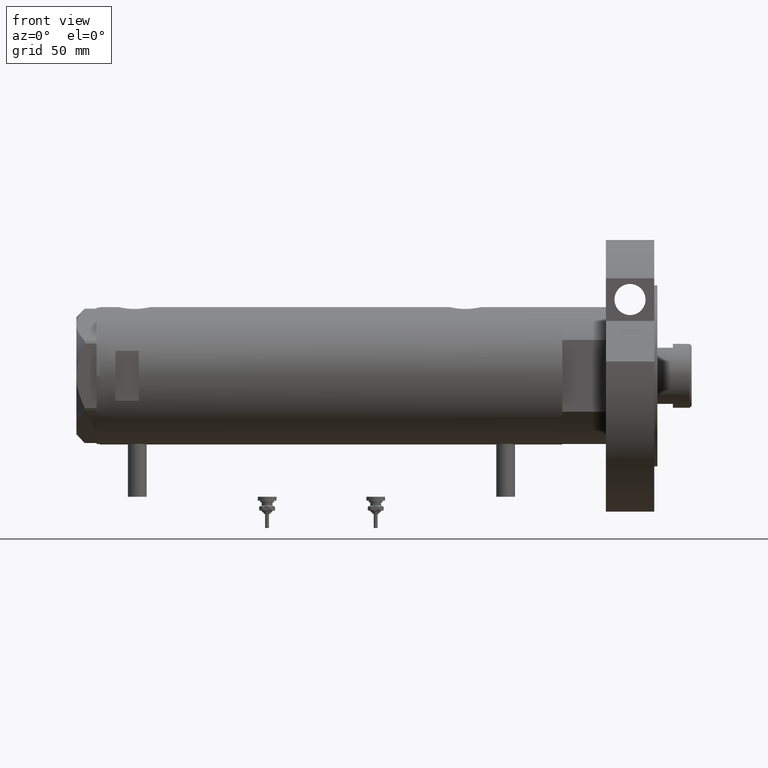
[diagram: clean part render]
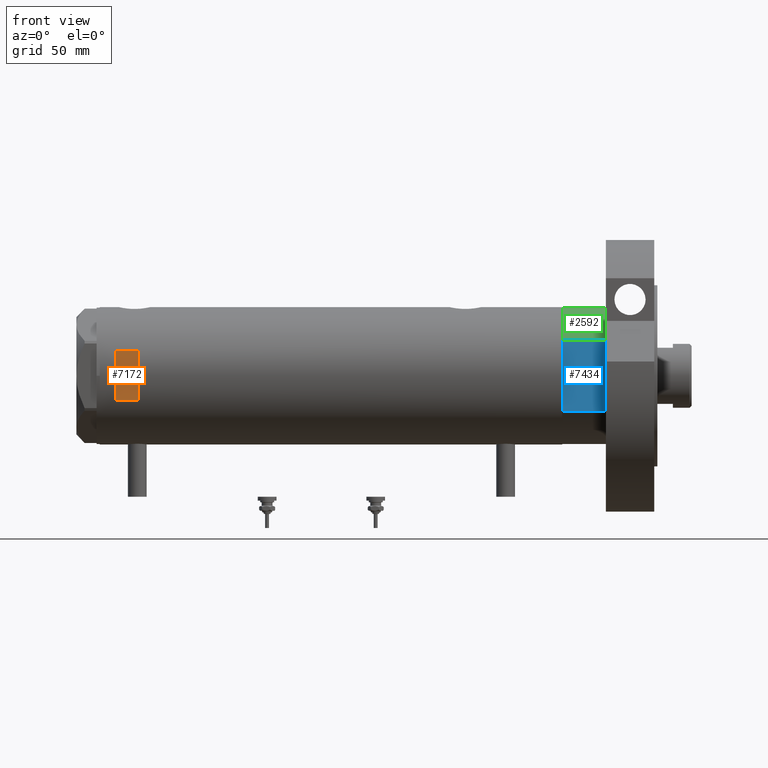
[diagram: same view with three faces highlighted in distinct colors, each labeled with its STEP entity id]
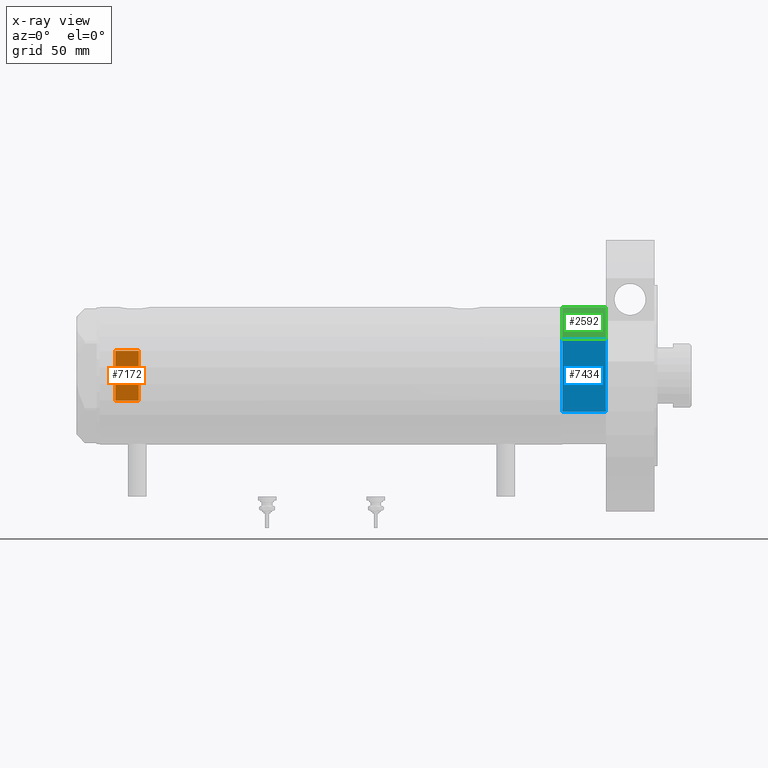
[diagram: x-ray of the same camera — body ghosted, the three highlighted faces saturated]
A machine part, front view with three faces highlighted in distinct colors.
The next image is the same camera in x-ray (body ghosted, the three faces saturated) — at least one of them is partly hidden behind the body in this view.
Their STEP definitions:

[orange] entity #7172 — the highlighted planar face has unit normal (-0, 1, 0).
#367 = EDGE_CURVE ( 'NONE', #5848, #728, #6651, .T. ) ;
#706 = DIRECTION ( 'NONE',  ( 0.000000000000000000, 1.000000000000000000, 0.000000000000000000 ) ) ;
#728 = VERTEX_POINT ( 'NONE', #2095 ) ;
#977 = VERTEX_POINT ( 'NONE', #4927 ) ;
#1274 = VECTOR ( 'NONE', #2391, 1000.000000000000000 ) ;
#1673 = CARTESIAN_POINT ( 'NONE',  ( -44.00000000000000000, -40.99999999999999289, 138.1999999999999886 ) ) ;
#1821 = LINE ( 'NONE', #1673, #1274 ) ;
#2095 = CARTESIAN_POINT ( 'NONE',  ( 15.96871942267132027, -40.99999999999999289, 138.1999999999999886 ) ) ;
#2264 = CARTESIAN_POINT ( 'NONE',  ( -15.96871942267132027, -40.99999999999999289, 138.1999999999999886 ) ) ;
#2391 = DIRECTION ( 'NONE',  ( 1.000000000000000000, -0.000000000000000000, -0.000000000000000000 ) ) ;
#2396 = VERTEX_POINT ( 'NONE', #2264 ) ;
#2472 = CARTESIAN_POINT ( 'NONE',  ( -44.00000000000000000, -40.99999999999999289, 138.1999999999999886 ) ) ;
#3115 = EDGE_CURVE ( 'NONE', #977, #5848, #4127, .T. ) ;
#3294 = DIRECTION ( 'NONE',  ( 0.000000000000000000, 0.000000000000000000, 1.000000000000000000 ) ) ;
#3362 = VECTOR ( 'NONE', #6449, 1000.000000000000000 ) ;
#3409 = ORIENTED_EDGE ( 'NONE', *, *, #367, .T. ) ;
#3443 = EDGE_CURVE ( 'NONE', #2396, #728, #1821, .T. ) ;
#3562 = CARTESIAN_POINT ( 'NONE',  ( 15.96871942267132027, -40.99999999999999289, 123.1999999999999744 ) ) ;
#3580 = DIRECTION ( 'NONE',  ( 0.000000000000000000, -0.000000000000000000, 1.000000000000000000 ) ) ;
#3598 = LINE ( 'NONE', #5887, #5006 ) ;
#4127 = LINE ( 'NONE', #5840, #3362 ) ;
#4743 = ORIENTED_EDGE ( 'NONE', *, *, #6879, .T. ) ;
#4927 = CARTESIAN_POINT ( 'NONE',  ( -15.96871942267132027, -40.99999999999999289, 123.1999999999999744 ) ) ;
#5006 = VECTOR ( 'NONE', #5924, 1000.000000000000000 ) ;
#5181 = EDGE_LOOP ( 'NONE', ( #4743, #6798, #3409, #7470 ) ) ;
#5238 = AXIS2_PLACEMENT_3D ( 'NONE', #2472, #706, #3580 ) ;
#5379 = PLANE ( 'NONE',  #5238 ) ;
#5840 = CARTESIAN_POINT ( 'NONE',  ( -44.00000000000000000, -40.99999999999999289, 123.1999999999999886 ) ) ;
#5848 = VERTEX_POINT ( 'NONE', #3562 ) ;
#5887 = CARTESIAN_POINT ( 'NONE',  ( -15.96871942267132027, -40.99999999999999289, -148.1999999999999886 ) ) ;
#5924 = DIRECTION ( 'NONE',  ( -0.000000000000000000, -0.000000000000000000, -1.000000000000000000 ) ) ;
#6449 = DIRECTION ( 'NONE',  ( 1.000000000000000000, -0.000000000000000000, -0.000000000000000000 ) ) ;
#6481 = FACE_OUTER_BOUND ( 'NONE', #5181, .T. ) ;
#6651 = LINE ( 'NONE', #7293, #6873 ) ;
#6798 = ORIENTED_EDGE ( 'NONE', *, *, #3115, .T. ) ;
#6873 = VECTOR ( 'NONE', #3294, 1000.000000000000000 ) ;
#6879 = EDGE_CURVE ( 'NONE', #2396, #977, #3598, .T. ) ;
#7172 = ADVANCED_FACE ( 'NONE', ( #6481 ), #5379, .F. ) ;
#7293 = CARTESIAN_POINT ( 'NONE',  ( 15.96871942267132027, -40.99999999999999289, -148.1999999999999886 ) ) ;
#7470 = ORIENTED_EDGE ( 'NONE', *, *, #3443, .F. ) ;

[blue] entity #7434 — the highlighted planar face has unit normal (-0, 1, 0).
#6 = CARTESIAN_POINT ( 'NONE',  ( 13.91941090707505957, -37.50000000000000000, 0.000000000000000000 ) ) ;
#119 = CARTESIAN_POINT ( 'NONE',  ( 0.000000000000000000, -37.50000000000000000, 27.89999999999999858 ) ) ;
#245 = DIRECTION ( 'NONE',  ( -0.000000000000000000, 1.000000000000000000, 0.000000000000000000 ) ) ;
#260 = CARTESIAN_POINT ( 'NONE',  ( -23.01629857296780557, -37.50000000000000000, 27.89999999999999858 ) ) ;
#502 = ORIENTED_EDGE ( 'NONE', *, *, #1147, .F. ) ;
#601 = CARTESIAN_POINT ( 'NONE',  ( -23.01629857296780557, -37.50000000000000000, 27.89999999999999858 ) ) ;
#764 = EDGE_CURVE ( 'NONE', #3931, #5040, #1752, .T. ) ;
#818 = LINE ( 'NONE', #1940, #2259 ) ;
#855 = DIRECTION ( 'NONE',  ( -0.000000000000000000, -0.000000000000000000, 1.000000000000000000 ) ) ;
#919 = LINE ( 'NONE', #7406, #3764 ) ;
#1044 = DIRECTION ( 'NONE',  ( -1.000000000000000000, -0.000000000000000000, -0.000000000000000000 ) ) ;
#1145 = VECTOR ( 'NONE', #6444, 1000.000000000000000 ) ;
#1147 = EDGE_CURVE ( 'NONE', #3226, #5221, #3581, .T. ) ;
#1267 = VECTOR ( 'NONE', #4080, 1000.000000000000000 ) ;
#1318 = EDGE_CURVE ( 'NONE', #3364, #2418, #4656, .T. ) ;
#1452 = VECTOR ( 'NONE', #1044, 1000.000000000000000 ) ;
#1605 = ORIENTED_EDGE ( 'NONE', *, *, #6984, .T. ) ;
#1752 = LINE ( 'NONE', #601, #1765 ) ;
#1765 = VECTOR ( 'NONE', #5348, 1000.000000000000000 ) ;
#1940 = CARTESIAN_POINT ( 'NONE',  ( -23.01629857296780557, -37.50000000000000000, 0.000000000000000000 ) ) ;
#2055 = PLANE ( 'NONE',  #3291 ) ;
#2105 = LINE ( 'NONE', #260, #1452 ) ;
#2205 = CARTESIAN_POINT ( 'NONE',  ( 23.01629857296780557, -37.50000000000000000, 0.000000000000000000 ) ) ;
#2259 = VECTOR ( 'NONE', #855, 1000.000000000000000 ) ;
#2418 = VERTEX_POINT ( 'NONE', #4719 ) ;
#2584 = DIRECTION ( 'NONE',  ( 0.000000000000000000, -0.000000000000000000, 1.000000000000000000 ) ) ;
#2891 = CARTESIAN_POINT ( 'NONE',  ( -13.91941090707505957, -37.50000000000000000, 0.000000000000000000 ) ) ;
#3162 = FACE_OUTER_BOUND ( 'NONE', #5942, .T. ) ;
#3213 = DIRECTION ( 'NONE',  ( -0.000000000000000000, -0.000000000000000000, 1.000000000000000000 ) ) ;
#3226 = VERTEX_POINT ( 'NONE', #2205 ) ;
#3291 = AXIS2_PLACEMENT_3D ( 'NONE', #5492, #245, #2584 ) ;
#3364 = VERTEX_POINT ( 'NONE', #2891 ) ;
#3434 = ORIENTED_EDGE ( 'NONE', *, *, #764, .T. ) ;
#3551 = EDGE_CURVE ( 'NONE', #2418, #5040, #818, .T. ) ;
#3581 = LINE ( 'NONE', #6371, #1145 ) ;
#3764 = VECTOR ( 'NONE', #6731, 1000.000000000000000 ) ;
#3931 = VERTEX_POINT ( 'NONE', #119 ) ;
#4010 = LINE ( 'NONE', #6722, #7061 ) ;
#4080 = DIRECTION ( 'NONE',  ( -1.000000000000000000, -0.000000000000000000, -0.000000000000000000 ) ) ;
#4656 = LINE ( 'NONE', #6973, #1267 ) ;
#4719 = CARTESIAN_POINT ( 'NONE',  ( -23.01629857296780557, -37.50000000000000000, 0.000000000000000000 ) ) ;
#4805 = CARTESIAN_POINT ( 'NONE',  ( 23.01629857296780557, -37.50000000000000000, 27.89999999999999858 ) ) ;
#5040 = VERTEX_POINT ( 'NONE', #5708 ) ;
#5221 = VERTEX_POINT ( 'NONE', #6 ) ;
#5348 = DIRECTION ( 'NONE',  ( -1.000000000000000000, -0.000000000000000000, -0.000000000000000000 ) ) ;
#5492 = CARTESIAN_POINT ( 'NONE',  ( -23.01629857296780557, -37.50000000000000000, 0.000000000000000000 ) ) ;
#5543 = EDGE_CURVE ( 'NONE', #5221, #3364, #919, .T. ) ;
#5587 = ORIENTED_EDGE ( 'NONE', *, *, #1318, .F. ) ;
#5708 = CARTESIAN_POINT ( 'NONE',  ( -23.01629857296780557, -37.50000000000000000, 27.89999999999999858 ) ) ;
#5942 = EDGE_LOOP ( 'NONE', ( #6156, #3434, #7427, #5587, #6950, #502, #1605 ) ) ;
#6156 = ORIENTED_EDGE ( 'NONE', *, *, #7032, .T. ) ;
#6371 = CARTESIAN_POINT ( 'NONE',  ( -23.01629857296780557, -37.50000000000000000, 0.000000000000000000 ) ) ;
#6444 = DIRECTION ( 'NONE',  ( -1.000000000000000000, -0.000000000000000000, -0.000000000000000000 ) ) ;
#6722 = CARTESIAN_POINT ( 'NONE',  ( 23.01629857296780557, -37.50000000000000000, 0.000000000000000000 ) ) ;
#6731 = DIRECTION ( 'NONE',  ( -1.000000000000000000, -0.000000000000000000, -0.000000000000000000 ) ) ;
#6950 = ORIENTED_EDGE ( 'NONE', *, *, #5543, .F. ) ;
#6973 = CARTESIAN_POINT ( 'NONE',  ( -23.01629857296780557, -37.50000000000000000, 0.000000000000000000 ) ) ;
#6984 = EDGE_CURVE ( 'NONE', #3226, #7302, #4010, .T. ) ;
#7032 = EDGE_CURVE ( 'NONE', #7302, #3931, #2105, .T. ) ;
#7061 = VECTOR ( 'NONE', #3213, 1000.000000000000000 ) ;
#7302 = VERTEX_POINT ( 'NONE', #4805 ) ;
#7406 = CARTESIAN_POINT ( 'NONE',  ( -23.01629857296780557, -37.50000000000000000, 0.000000000000000000 ) ) ;
#7427 = ORIENTED_EDGE ( 'NONE', *, *, #3551, .F. ) ;
#7434 = ADVANCED_FACE ( 'NONE', ( #3162 ), #2055, .F. ) ;

[green] entity #2592 — the highlighted cylindrical surface (partial cylindrical patch) has radius 44 mm, axis along (-1, -0, 0).
#9 = ORIENTED_EDGE ( 'NONE', *, *, #1043, .T. ) ;
#123 = EDGE_CURVE ( 'NONE', #5029, #5040, #3959, .T. ) ;
#162 = FACE_OUTER_BOUND ( 'NONE', #4704, .T. ) ;
#241 = CYLINDRICAL_SURFACE ( 'NONE', #4233, 44.00000000000000000 ) ;
#275 = ORIENTED_EDGE ( 'NONE', *, *, #6652, .T. ) ;
#417 = LINE ( 'NONE', #4416, #2298 ) ;
#423 = ORIENTED_EDGE ( 'NONE', *, *, #123, .F. ) ;
#441 = DIRECTION ( 'NONE',  ( 1.000000000000000000, 0.000000000000000000, 0.000000000000000000 ) ) ;
#815 = DIRECTION ( 'NONE',  ( -1.000000000000000000, 0.000000000000000000, 0.000000000000000000 ) ) ;
#818 = LINE ( 'NONE', #1940, #2259 ) ;
#855 = DIRECTION ( 'NONE',  ( -0.000000000000000000, -0.000000000000000000, 1.000000000000000000 ) ) ;
#1043 = EDGE_CURVE ( 'NONE', #3921, #2418, #2132, .T. ) ;
#1104 = CARTESIAN_POINT ( 'NONE',  ( 0.000000000000000000, 0.000000000000000000, 27.89999999999999858 ) ) ;
#1940 = CARTESIAN_POINT ( 'NONE',  ( -23.01629857296780557, -37.50000000000000000, 0.000000000000000000 ) ) ;
#2132 = CIRCLE ( 'NONE', #5303, 44.00000000000000000 ) ;
#2259 = VECTOR ( 'NONE', #855, 1000.000000000000000 ) ;
#2298 = VECTOR ( 'NONE', #6159, 1000.000000000000000 ) ;
#2418 = VERTEX_POINT ( 'NONE', #4719 ) ;
#2592 = ADVANCED_FACE ( 'NONE', ( #162 ), #241, .T. ) ;
#3530 = DIRECTION ( 'NONE',  ( 1.000000000000000000, 0.000000000000000000, 0.000000000000000000 ) ) ;
#3551 = EDGE_CURVE ( 'NONE', #2418, #5040, #818, .T. ) ;
#3657 = CARTESIAN_POINT ( 'NONE',  ( 0.000000000000000000, 0.000000000000000000, 27.89999999999999858 ) ) ;
#3702 = CARTESIAN_POINT ( 'NONE',  ( -44.00000000000000000, 0.000000000000000000, 27.89999999999999858 ) ) ;
#3921 = VERTEX_POINT ( 'NONE', #7150 ) ;
#3959 = CIRCLE ( 'NONE', #5897, 44.00000000000000000 ) ;
#4233 = AXIS2_PLACEMENT_3D ( 'NONE', #3657, #7196, #815 ) ;
#4416 = CARTESIAN_POINT ( 'NONE',  ( -44.00000000000000000, 0.000000000000000000, 27.89999999999999858 ) ) ;
#4704 = EDGE_LOOP ( 'NONE', ( #423, #275, #9, #5129 ) ) ;
#4719 = CARTESIAN_POINT ( 'NONE',  ( -23.01629857296780557, -37.50000000000000000, 0.000000000000000000 ) ) ;
#5029 = VERTEX_POINT ( 'NONE', #3702 ) ;
#5040 = VERTEX_POINT ( 'NONE', #5708 ) ;
#5129 = ORIENTED_EDGE ( 'NONE', *, *, #3551, .T. ) ;
#5303 = AXIS2_PLACEMENT_3D ( 'NONE', #5681, #5644, #441 ) ;
#5644 = DIRECTION ( 'NONE',  ( 0.000000000000000000, 0.000000000000000000, 1.000000000000000000 ) ) ;
#5681 = CARTESIAN_POINT ( 'NONE',  ( 0.000000000000000000, 0.000000000000000000, 0.000000000000000000 ) ) ;
#5708 = CARTESIAN_POINT ( 'NONE',  ( -23.01629857296780557, -37.50000000000000000, 27.89999999999999858 ) ) ;
#5897 = AXIS2_PLACEMENT_3D ( 'NONE', #1104, #6992, #3530 ) ;
#6159 = DIRECTION ( 'NONE',  ( -0.000000000000000000, -0.000000000000000000, -1.000000000000000000 ) ) ;
#6652 = EDGE_CURVE ( 'NONE', #5029, #3921, #417, .T. ) ;
#6992 = DIRECTION ( 'NONE',  ( 0.000000000000000000, 0.000000000000000000, 1.000000000000000000 ) ) ;
#7150 = CARTESIAN_POINT ( 'NONE',  ( -44.00000000000000000, 0.000000000000000000, 0.000000000000000000 ) ) ;
#7196 = DIRECTION ( 'NONE',  ( -0.000000000000000000, -0.000000000000000000, -1.000000000000000000 ) ) ;